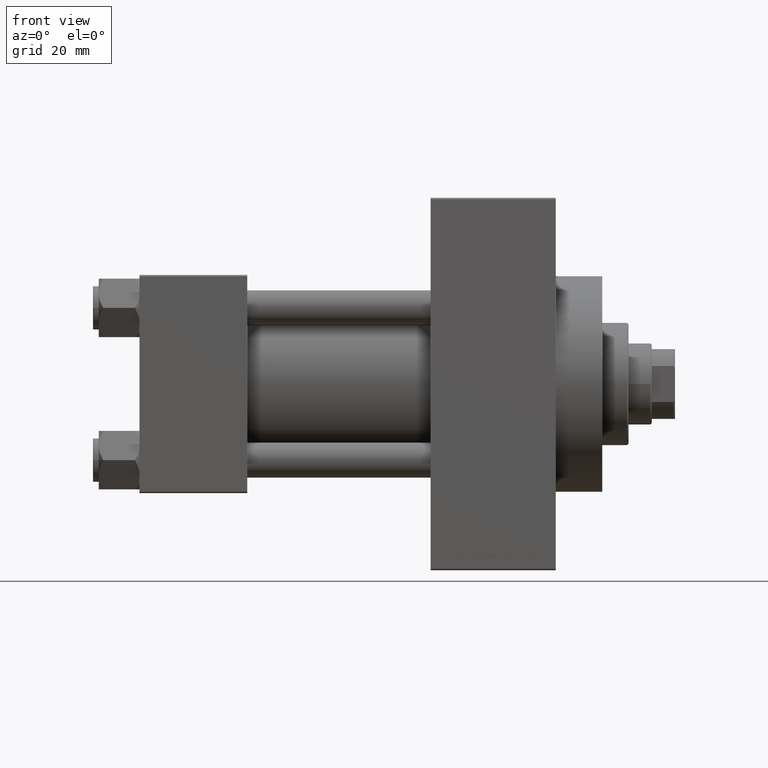
[diagram: clean part render]
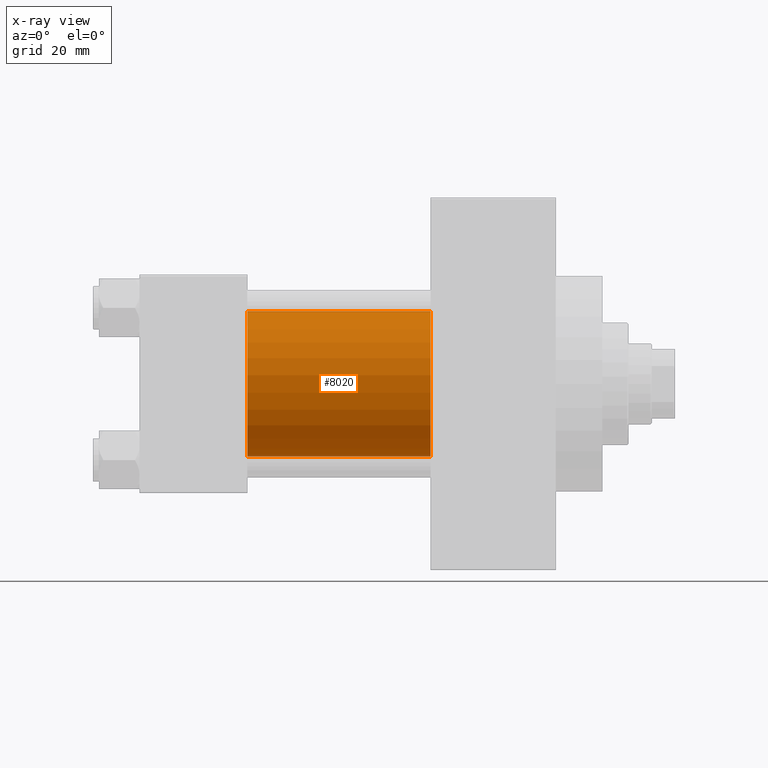
[diagram: x-ray — body ghosted, one internal face saturated and labeled with its STEP entity id]
A machine part, front view, then the same camera in x-ray: the body is ghosted and one INTERNAL B-rep face — a face not visible from any outside direction — is saturated and labeled: STEP entity #8020.
In plain terms, the highlighted cylindrical surface (partial cylindrical patch) has radius 25 mm, axis along (-1, -0, -0).
Its self-contained STEP definition (entity closure, byte-faithful):
#350 = CARTESIAN_POINT ( 'NONE',  ( 100.0000000000000000, -2.602085213965210642E-15, 0.000000000000000000 ) ) ;
#2426 = ORIENTED_EDGE ( 'NONE', *, *, #27160, .T. ) ;
#4668 = DIRECTION ( 'NONE',  ( 1.000000000000000000, 0.000000000000000000, 0.000000000000000000 ) ) ;
#6538 = DIRECTION ( 'NONE',  ( 0.000000000000000000, 0.000000000000000000, 1.000000000000000000 ) ) ;
#8020 = ADVANCED_FACE ( 'NONE', ( #41651 ), #11009, .F. ) ;
#8222 = CARTESIAN_POINT ( 'NONE',  ( 37.00000000000000000, -2.602085213965210642E-15, 25.00000000000000000 ) ) ;
#9937 = CARTESIAN_POINT ( 'NONE',  ( 37.00000000000000000, 4.595317839031724996E-16, -25.00000000000000000 ) ) ;
#10143 = ORIENTED_EDGE ( 'NONE', *, *, #32470, .F. ) ;
#11009 = CYLINDRICAL_SURFACE ( 'NONE', #41926, 25.00000000000000000 ) ;
#11571 = DIRECTION ( 'NONE',  ( 1.000000000000000000, 0.000000000000000000, 0.000000000000000000 ) ) ;
#11813 = LINE ( 'NONE', #31503, #12755 ) ;
#11848 = CIRCLE ( 'NONE', #19819, 25.00000000000000000 ) ;
#12311 = ORIENTED_EDGE ( 'NONE', *, *, #25261, .T. ) ;
#12755 = VECTOR ( 'NONE', #42458, 1000.000000000000000 ) ;
#13521 = VERTEX_POINT ( 'NONE', #47266 ) ;
#13928 = ORIENTED_EDGE ( 'NONE', *, *, #24559, .F. ) ;
#14233 = AXIS2_PLACEMENT_3D ( 'NONE', #350, #11571, #26782 ) ;
#18741 = CARTESIAN_POINT ( 'NONE',  ( 100.0000000000000000, -2.602085213965210642E-15, 0.000000000000000000 ) ) ;
#19567 = CARTESIAN_POINT ( 'NONE',  ( 100.0000000000000000, 4.595317839031724996E-16, -25.00000000000000000 ) ) ;
#19819 = AXIS2_PLACEMENT_3D ( 'NONE', #31872, #4668, #24378 ) ;
#22842 = VERTEX_POINT ( 'NONE', #8222 ) ;
#24378 = DIRECTION ( 'NONE',  ( 0.000000000000000000, 0.000000000000000000, -1.000000000000000000 ) ) ;
#24559 = EDGE_CURVE ( 'NONE', #22842, #29602, #11848, .T. ) ;
#25261 = EDGE_CURVE ( 'NONE', #34972, #29602, #36653, .T. ) ;
#26782 = DIRECTION ( 'NONE',  ( 0.000000000000000000, 0.000000000000000000, -1.000000000000000000 ) ) ;
#27160 = EDGE_CURVE ( 'NONE', #13521, #34972, #30967, .T. ) ;
#29602 = VERTEX_POINT ( 'NONE', #9937 ) ;
#30967 = CIRCLE ( 'NONE', #14233, 25.00000000000000000 ) ;
#31503 = CARTESIAN_POINT ( 'NONE',  ( 100.0000000000000000, -2.602085213965210642E-15, 25.00000000000000000 ) ) ;
#31872 = CARTESIAN_POINT ( 'NONE',  ( 37.00000000000000000, -2.602085213965210642E-15, 0.000000000000000000 ) ) ;
#32470 = EDGE_CURVE ( 'NONE', #13521, #22842, #11813, .T. ) ;
#34972 = VERTEX_POINT ( 'NONE', #19567 ) ;
#36653 = LINE ( 'NONE', #48110, #42788 ) ;
#37183 = DIRECTION ( 'NONE',  ( -1.000000000000000000, -0.000000000000000000, -0.000000000000000000 ) ) ;
#41349 = DIRECTION ( 'NONE',  ( -1.000000000000000000, -0.000000000000000000, -0.000000000000000000 ) ) ;
#41651 = FACE_OUTER_BOUND ( 'NONE', #43686, .T. ) ;
#41926 = AXIS2_PLACEMENT_3D ( 'NONE', #18741, #37183, #6538 ) ;
#42458 = DIRECTION ( 'NONE',  ( -1.000000000000000000, -0.000000000000000000, -0.000000000000000000 ) ) ;
#42788 = VECTOR ( 'NONE', #41349, 1000.000000000000000 ) ;
#43686 = EDGE_LOOP ( 'NONE', ( #2426, #12311, #13928, #10143 ) ) ;
#47266 = CARTESIAN_POINT ( 'NONE',  ( 100.0000000000000000, -2.602085213965210642E-15, 25.00000000000000000 ) ) ;
#48110 = CARTESIAN_POINT ( 'NONE',  ( 100.0000000000000000, 4.595317839031724996E-16, -25.00000000000000000 ) ) ;